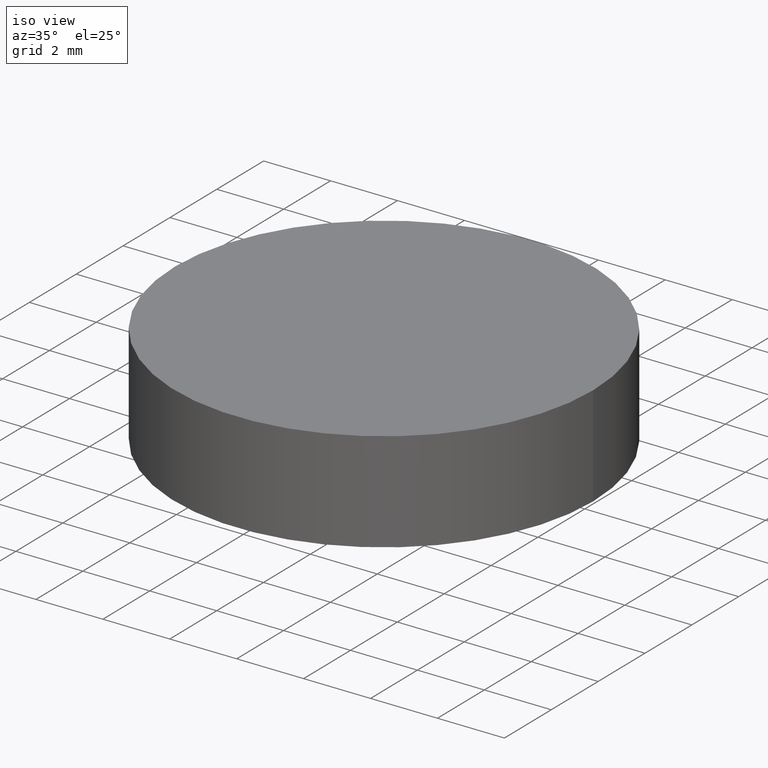
[diagram: clean part render]
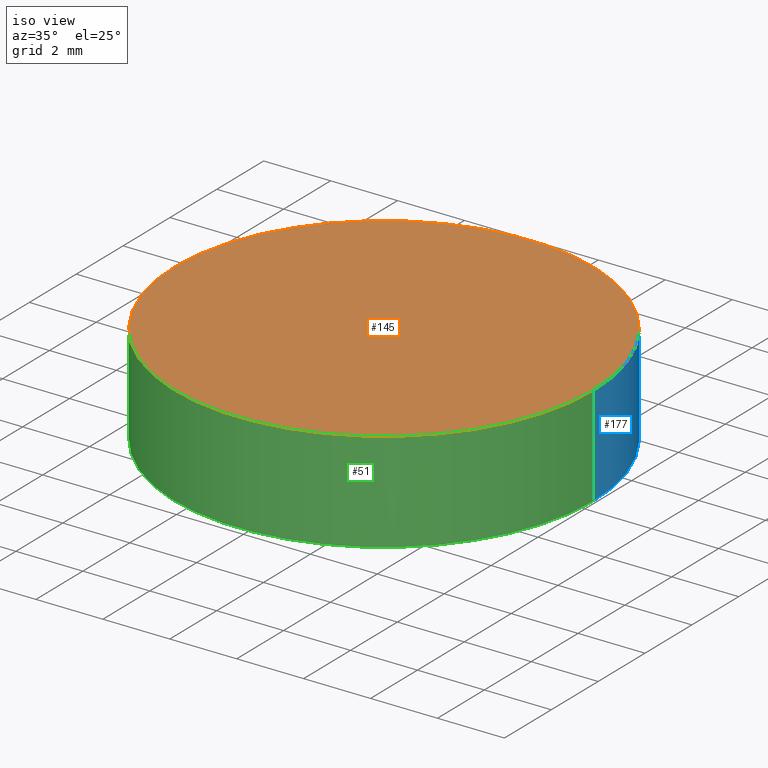
[diagram: same view with three faces highlighted in distinct colors, each labeled with its STEP entity id]
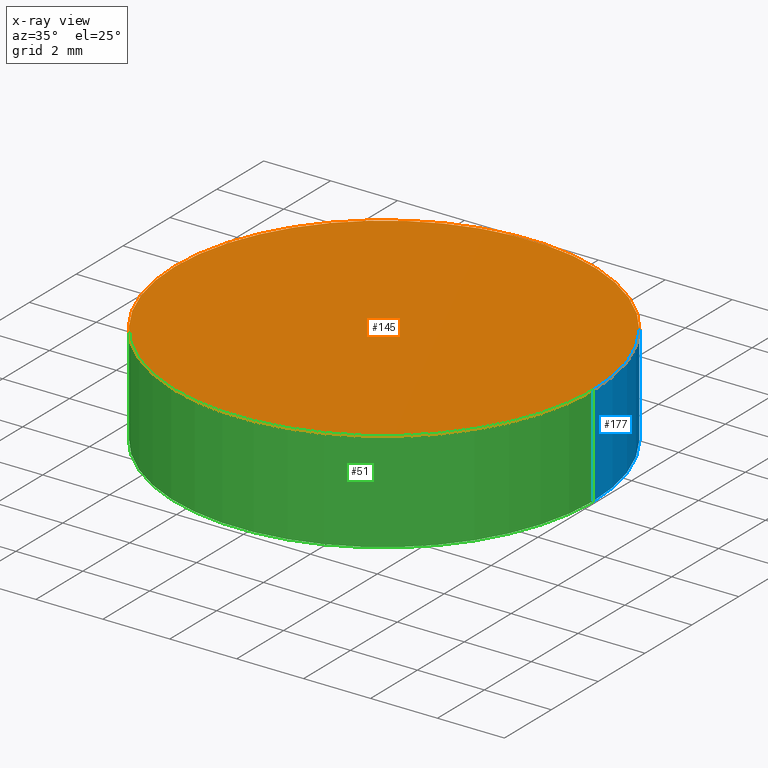
[diagram: x-ray of the same camera — body ghosted, the three highlighted faces saturated]
A machine part, iso view with three faces highlighted in distinct colors.
The next image is the same camera in x-ray (body ghosted, the three faces saturated) — at least one of them is partly hidden behind the body in this view.
Their STEP definitions:

[orange] entity #145 — the highlighted planar face has unit normal (0, 0, 1).
#8 = DIRECTION ( 'NONE',  ( 1.000000000000000000, 0.0000000000000000000, 0.0000000000000000000 ) ) ;
#14 = CIRCLE ( 'NONE', #198, 6.249999999999998200 ) ;
#18 = VERTEX_POINT ( 'NONE', #68 ) ;
#26 = AXIS2_PLACEMENT_3D ( 'NONE', #166, #144, #82 ) ;
#57 = CIRCLE ( 'NONE', #67, 6.249999999999998200 ) ;
#64 = DIRECTION ( 'NONE',  ( 0.0000000000000000000, 0.0000000000000000000, 1.000000000000000000 ) ) ;
#67 = AXIS2_PLACEMENT_3D ( 'NONE', #122, #64, #8 ) ;
#68 = CARTESIAN_POINT ( 'NONE',  ( 6.249999999999998200, 7.654042494670955600E-016, 3.000000000000000000 ) ) ;
#70 = CARTESIAN_POINT ( 'NONE',  ( -6.249999999999998200, 0.0000000000000000000, 3.000000000000000000 ) ) ;
#82 = DIRECTION ( 'NONE',  ( 1.000000000000000000, 0.0000000000000000000, -0.0000000000000000000 ) ) ;
#87 = FACE_OUTER_BOUND ( 'NONE', #181, .T. ) ;
#102 = EDGE_CURVE ( 'NONE', #142, #18, #57, .T. ) ;
#108 = DIRECTION ( 'NONE',  ( 0.0000000000000000000, 0.0000000000000000000, 1.000000000000000000 ) ) ;
#122 = CARTESIAN_POINT ( 'NONE',  ( 0.0000000000000000000, 0.0000000000000000000, 3.000000000000000000 ) ) ;
#128 = DIRECTION ( 'NONE',  ( 1.000000000000000000, 0.0000000000000000000, 0.0000000000000000000 ) ) ;
#142 = VERTEX_POINT ( 'NONE', #70 ) ;
#144 = DIRECTION ( 'NONE',  ( 0.0000000000000000000, 0.0000000000000000000, 1.000000000000000000 ) ) ;
#145 = ADVANCED_FACE ( 'NONE', ( #87 ), #204, .T. ) ;
#150 = ORIENTED_EDGE ( 'NONE', *, *, #102, .T. ) ;
#166 = CARTESIAN_POINT ( 'NONE',  ( 0.0000000000000000000, 0.0000000000000000000, 3.000000000000000000 ) ) ;
#181 = EDGE_LOOP ( 'NONE', ( #150, #225 ) ) ;
#198 = AXIS2_PLACEMENT_3D ( 'NONE', #231, #108, #128 ) ;
#204 = PLANE ( 'NONE',  #26 ) ;
#211 = EDGE_CURVE ( 'NONE', #18, #142, #14, .T. ) ;
#225 = ORIENTED_EDGE ( 'NONE', *, *, #211, .T. ) ;
#231 = CARTESIAN_POINT ( 'NONE',  ( 0.0000000000000000000, 0.0000000000000000000, 3.000000000000000000 ) ) ;

[blue] entity #177 — the highlighted cylindrical surface (partial cylindrical patch) has radius 6.25 mm, axis along (-0, -0, -1).
#3 = EDGE_CURVE ( 'NONE', #142, #80, #97, .T. ) ;
#9 = AXIS2_PLACEMENT_3D ( 'NONE', #186, #203, #224 ) ;
#11 = CARTESIAN_POINT ( 'NONE',  ( 6.249999999999998200, 7.654042494670955600E-016, 3.000000000000000000 ) ) ;
#14 = CIRCLE ( 'NONE', #198, 6.249999999999998200 ) ;
#18 = VERTEX_POINT ( 'NONE', #68 ) ;
#30 = FACE_OUTER_BOUND ( 'NONE', #215, .T. ) ;
#37 = ORIENTED_EDGE ( 'NONE', *, *, #3, .F. ) ;
#45 = DIRECTION ( 'NONE',  ( 0.0000000000000000000, 0.0000000000000000000, 1.000000000000000000 ) ) ;
#47 = ORIENTED_EDGE ( 'NONE', *, *, #59, .T. ) ;
#59 = EDGE_CURVE ( 'NONE', #18, #197, #77, .T. ) ;
#68 = CARTESIAN_POINT ( 'NONE',  ( 6.249999999999998200, 7.654042494670955600E-016, 3.000000000000000000 ) ) ;
#70 = CARTESIAN_POINT ( 'NONE',  ( -6.249999999999998200, 0.0000000000000000000, 3.000000000000000000 ) ) ;
#77 = LINE ( 'NONE', #11, #191 ) ;
#80 = VERTEX_POINT ( 'NONE', #170 ) ;
#83 = EDGE_CURVE ( 'NONE', #197, #80, #248, .T. ) ;
#85 = CARTESIAN_POINT ( 'NONE',  ( -6.249999999999998200, 0.0000000000000000000, 3.000000000000000000 ) ) ;
#97 = LINE ( 'NONE', #85, #194 ) ;
#106 = CARTESIAN_POINT ( 'NONE',  ( 0.0000000000000000000, 0.0000000000000000000, 0.0000000000000000000 ) ) ;
#107 = CYLINDRICAL_SURFACE ( 'NONE', #9, 6.249999999999998200 ) ;
#108 = DIRECTION ( 'NONE',  ( 0.0000000000000000000, 0.0000000000000000000, 1.000000000000000000 ) ) ;
#117 = ORIENTED_EDGE ( 'NONE', *, *, #211, .F. ) ;
#127 = DIRECTION ( 'NONE',  ( -0.0000000000000000000, -0.0000000000000000000, -1.000000000000000000 ) ) ;
#128 = DIRECTION ( 'NONE',  ( 1.000000000000000000, 0.0000000000000000000, 0.0000000000000000000 ) ) ;
#142 = VERTEX_POINT ( 'NONE', #70 ) ;
#170 = CARTESIAN_POINT ( 'NONE',  ( -6.249999999999998200, 0.0000000000000000000, 0.0000000000000000000 ) ) ;
#177 = ADVANCED_FACE ( 'NONE', ( #30 ), #107, .T. ) ;
#183 = DIRECTION ( 'NONE',  ( -0.0000000000000000000, -0.0000000000000000000, -1.000000000000000000 ) ) ;
#185 = ORIENTED_EDGE ( 'NONE', *, *, #83, .T. ) ;
#186 = CARTESIAN_POINT ( 'NONE',  ( 0.0000000000000000000, 0.0000000000000000000, 3.000000000000000000 ) ) ;
#187 = DIRECTION ( 'NONE',  ( 1.000000000000000000, 0.0000000000000000000, 0.0000000000000000000 ) ) ;
#191 = VECTOR ( 'NONE', #183, 1000.000000000000000 ) ;
#194 = VECTOR ( 'NONE', #127, 1000.000000000000000 ) ;
#197 = VERTEX_POINT ( 'NONE', #226 ) ;
#198 = AXIS2_PLACEMENT_3D ( 'NONE', #231, #108, #128 ) ;
#203 = DIRECTION ( 'NONE',  ( -0.0000000000000000000, -0.0000000000000000000, -1.000000000000000000 ) ) ;
#211 = EDGE_CURVE ( 'NONE', #18, #142, #14, .T. ) ;
#215 = EDGE_LOOP ( 'NONE', ( #117, #47, #185, #37 ) ) ;
#217 = AXIS2_PLACEMENT_3D ( 'NONE', #106, #45, #187 ) ;
#224 = DIRECTION ( 'NONE',  ( -1.000000000000000000, 0.0000000000000000000, 0.0000000000000000000 ) ) ;
#226 = CARTESIAN_POINT ( 'NONE',  ( 6.249999999999998200, 7.654042494670955600E-016, 0.0000000000000000000 ) ) ;
#231 = CARTESIAN_POINT ( 'NONE',  ( 0.0000000000000000000, 0.0000000000000000000, 3.000000000000000000 ) ) ;
#248 = CIRCLE ( 'NONE', #217, 6.249999999999998200 ) ;

[green] entity #51 — the highlighted cylindrical surface (partial cylindrical patch) has radius 6.25 mm, axis along (-0, -0, -1).
#3 = EDGE_CURVE ( 'NONE', #142, #80, #97, .T. ) ;
#8 = DIRECTION ( 'NONE',  ( 1.000000000000000000, 0.0000000000000000000, 0.0000000000000000000 ) ) ;
#11 = CARTESIAN_POINT ( 'NONE',  ( 6.249999999999998200, 7.654042494670955600E-016, 3.000000000000000000 ) ) ;
#18 = VERTEX_POINT ( 'NONE', #68 ) ;
#28 = CARTESIAN_POINT ( 'NONE',  ( 0.0000000000000000000, 0.0000000000000000000, 0.0000000000000000000 ) ) ;
#42 = DIRECTION ( 'NONE',  ( -1.000000000000000000, 0.0000000000000000000, 0.0000000000000000000 ) ) ;
#50 = EDGE_CURVE ( 'NONE', #80, #197, #61, .T. ) ;
#51 = ADVANCED_FACE ( 'NONE', ( #121 ), #234, .T. ) ;
#57 = CIRCLE ( 'NONE', #67, 6.249999999999998200 ) ;
#59 = EDGE_CURVE ( 'NONE', #18, #197, #77, .T. ) ;
#61 = CIRCLE ( 'NONE', #241, 6.249999999999998200 ) ;
#64 = DIRECTION ( 'NONE',  ( 0.0000000000000000000, 0.0000000000000000000, 1.000000000000000000 ) ) ;
#67 = AXIS2_PLACEMENT_3D ( 'NONE', #122, #64, #8 ) ;
#68 = CARTESIAN_POINT ( 'NONE',  ( 6.249999999999998200, 7.654042494670955600E-016, 3.000000000000000000 ) ) ;
#70 = CARTESIAN_POINT ( 'NONE',  ( -6.249999999999998200, 0.0000000000000000000, 3.000000000000000000 ) ) ;
#77 = LINE ( 'NONE', #11, #191 ) ;
#80 = VERTEX_POINT ( 'NONE', #170 ) ;
#85 = CARTESIAN_POINT ( 'NONE',  ( -6.249999999999998200, 0.0000000000000000000, 3.000000000000000000 ) ) ;
#97 = LINE ( 'NONE', #85, #194 ) ;
#102 = EDGE_CURVE ( 'NONE', #142, #18, #57, .T. ) ;
#114 = EDGE_LOOP ( 'NONE', ( #240, #169, #243, #134 ) ) ;
#121 = FACE_OUTER_BOUND ( 'NONE', #114, .T. ) ;
#122 = CARTESIAN_POINT ( 'NONE',  ( 0.0000000000000000000, 0.0000000000000000000, 3.000000000000000000 ) ) ;
#125 = DIRECTION ( 'NONE',  ( 1.000000000000000000, 0.0000000000000000000, 0.0000000000000000000 ) ) ;
#127 = DIRECTION ( 'NONE',  ( -0.0000000000000000000, -0.0000000000000000000, -1.000000000000000000 ) ) ;
#131 = AXIS2_PLACEMENT_3D ( 'NONE', #168, #182, #42 ) ;
#134 = ORIENTED_EDGE ( 'NONE', *, *, #50, .T. ) ;
#142 = VERTEX_POINT ( 'NONE', #70 ) ;
#148 = DIRECTION ( 'NONE',  ( 0.0000000000000000000, 0.0000000000000000000, 1.000000000000000000 ) ) ;
#168 = CARTESIAN_POINT ( 'NONE',  ( 0.0000000000000000000, 0.0000000000000000000, 3.000000000000000000 ) ) ;
#169 = ORIENTED_EDGE ( 'NONE', *, *, #102, .F. ) ;
#170 = CARTESIAN_POINT ( 'NONE',  ( -6.249999999999998200, 0.0000000000000000000, 0.0000000000000000000 ) ) ;
#182 = DIRECTION ( 'NONE',  ( -0.0000000000000000000, -0.0000000000000000000, -1.000000000000000000 ) ) ;
#183 = DIRECTION ( 'NONE',  ( -0.0000000000000000000, -0.0000000000000000000, -1.000000000000000000 ) ) ;
#191 = VECTOR ( 'NONE', #183, 1000.000000000000000 ) ;
#194 = VECTOR ( 'NONE', #127, 1000.000000000000000 ) ;
#197 = VERTEX_POINT ( 'NONE', #226 ) ;
#226 = CARTESIAN_POINT ( 'NONE',  ( 6.249999999999998200, 7.654042494670955600E-016, 0.0000000000000000000 ) ) ;
#234 = CYLINDRICAL_SURFACE ( 'NONE', #131, 6.249999999999998200 ) ;
#240 = ORIENTED_EDGE ( 'NONE', *, *, #59, .F. ) ;
#241 = AXIS2_PLACEMENT_3D ( 'NONE', #28, #148, #125 ) ;
#243 = ORIENTED_EDGE ( 'NONE', *, *, #3, .T. ) ;